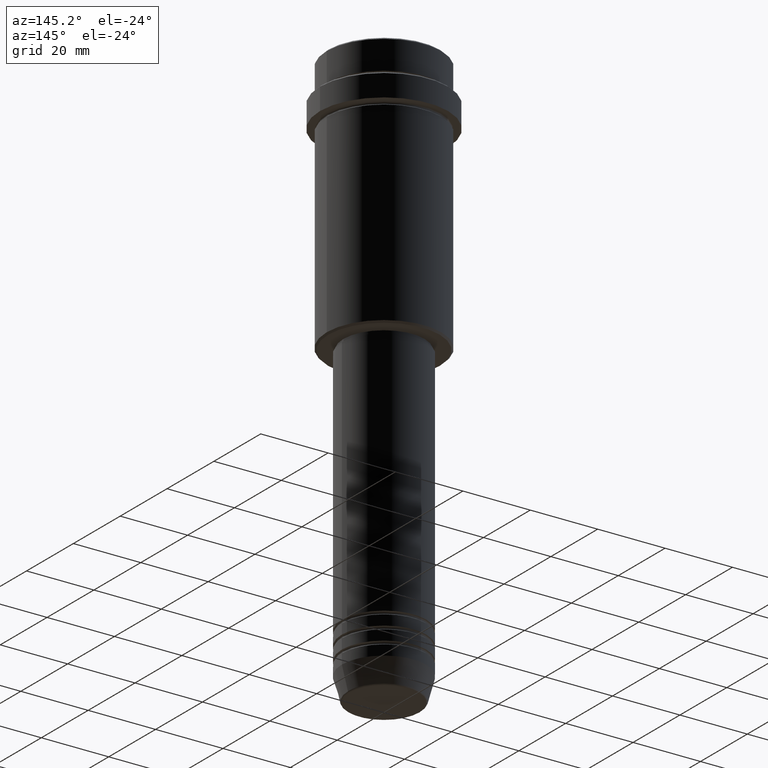
[diagram: clean part render]
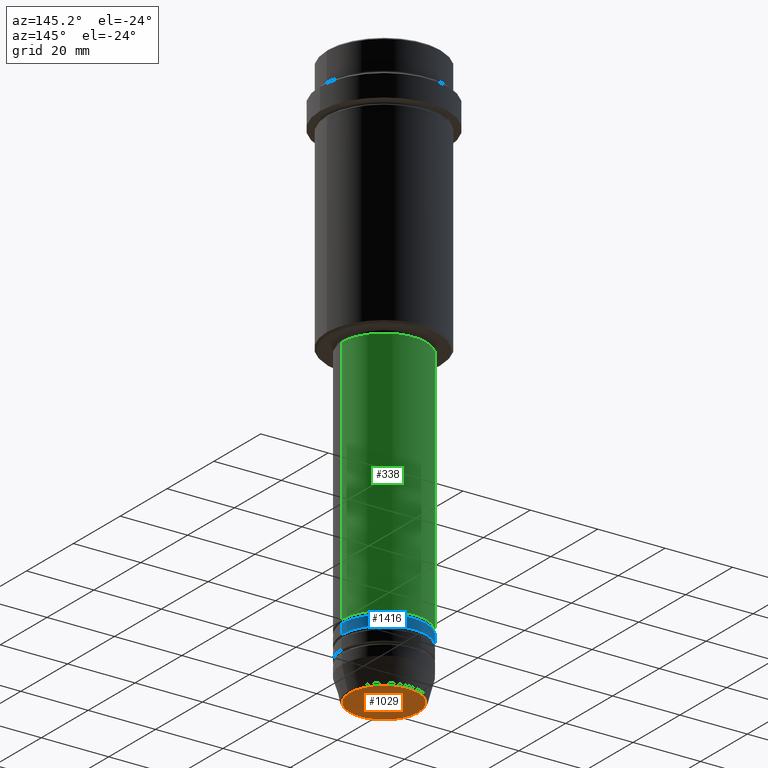
[diagram: same view with three faces highlighted in distinct colors, each labeled with its STEP entity id]
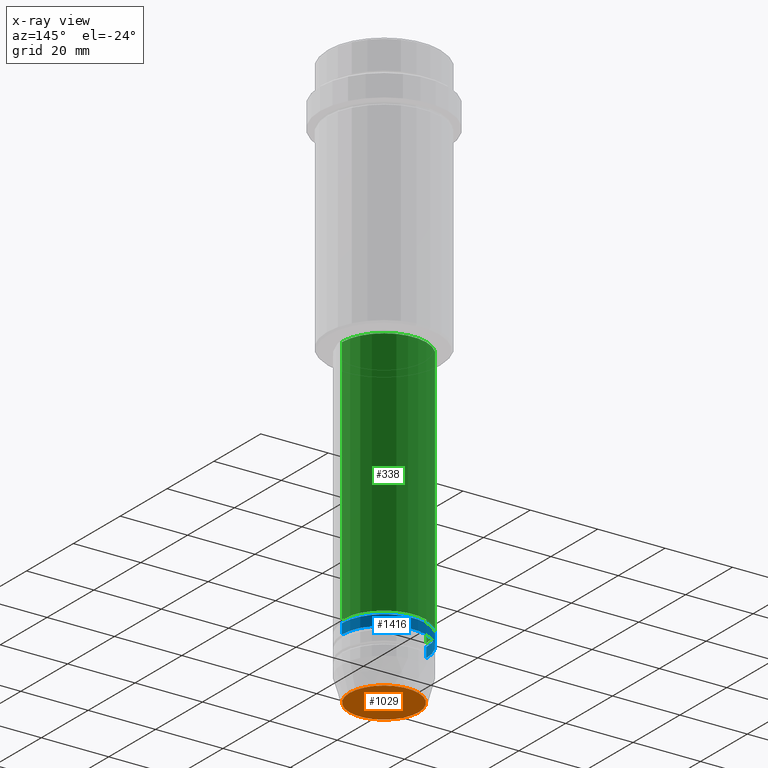
[diagram: x-ray of the same camera — body ghosted, the three highlighted faces saturated]
A machine part, auxiliary view with three faces highlighted in distinct colors.
The next image is the same camera in x-ray (body ghosted, the three faces saturated) — at least one of them is partly hidden behind the body in this view.
Their STEP definitions:

[orange] entity #1029 — the highlighted planar face has unit normal (0, -0, 1).
#21 = DIRECTION ( 'NONE',  ( 1.000000000000000000, 0.000000000000000000, 0.000000000000000000 ) ) ;
#88 = CARTESIAN_POINT ( 'NONE',  ( 0.000000000000000000, 0.000000000000000000, -170.0000000000000000 ) ) ;
#110 = EDGE_CURVE ( 'NONE', #747, #968, #164, .T. ) ;
#164 = CIRCLE ( 'NONE', #567, 10.24069215899265828 ) ;
#208 = CIRCLE ( 'NONE', #248, 10.24069215899265828 ) ;
#213 = ORIENTED_EDGE ( 'NONE', *, *, #427, .T. ) ;
#248 = AXIS2_PLACEMENT_3D ( 'NONE', #556, #1001, #21 ) ;
#255 = EDGE_LOOP ( 'NONE', ( #213, #814 ) ) ;
#271 = PLANE ( 'NONE',  #765 ) ;
#427 = EDGE_CURVE ( 'NONE', #968, #747, #208, .T. ) ;
#487 = DIRECTION ( 'NONE',  ( 1.000000000000000000, 0.000000000000000000, 0.000000000000000000 ) ) ;
#556 = CARTESIAN_POINT ( 'NONE',  ( 0.000000000000000000, 0.000000000000000000, -170.0000000000000000 ) ) ;
#567 = AXIS2_PLACEMENT_3D ( 'NONE', #812, #1044, #487 ) ;
#723 = DIRECTION ( 'NONE',  ( 1.000000000000000000, 0.000000000000000000, 0.000000000000000000 ) ) ;
#747 = VERTEX_POINT ( 'NONE', #984 ) ;
#765 = AXIS2_PLACEMENT_3D ( 'NONE', #88, #1050, #723 ) ;
#812 = CARTESIAN_POINT ( 'NONE',  ( 0.000000000000000000, 0.000000000000000000, -170.0000000000000000 ) ) ;
#814 = ORIENTED_EDGE ( 'NONE', *, *, #110, .T. ) ;
#887 = CARTESIAN_POINT ( 'NONE',  ( 10.24069215899265828, 0.000000000000000000, -170.0000000000000000 ) ) ;
#968 = VERTEX_POINT ( 'NONE', #887 ) ;
#984 = CARTESIAN_POINT ( 'NONE',  ( -10.24069215899265828, 1.283696036640842178E-15, -170.0000000000000000 ) ) ;
#1001 = DIRECTION ( 'NONE',  ( 0.000000000000000000, 0.000000000000000000, -1.000000000000000000 ) ) ;
#1029 = ADVANCED_FACE ( 'NONE', ( #1280 ), #271, .F. ) ;
#1044 = DIRECTION ( 'NONE',  ( 0.000000000000000000, 0.000000000000000000, -1.000000000000000000 ) ) ;
#1050 = DIRECTION ( 'NONE',  ( 0.000000000000000000, -0.000000000000000000, 1.000000000000000000 ) ) ;
#1280 = FACE_OUTER_BOUND ( 'NONE', #255, .T. ) ;

[blue] entity #1416 — the highlighted cylindrical surface (partial cylindrical patch) has radius 12.5 mm, axis along (-0, -0, 1).
#2 = DIRECTION ( 'NONE',  ( 1.000000000000000000, 0.000000000000000000, 0.000000000000000000 ) ) ;
#20 = EDGE_CURVE ( 'NONE', #1225, #455, #481, .T. ) ;
#48 = ORIENTED_EDGE ( 'NONE', *, *, #20, .F. ) ;
#79 = DIRECTION ( 'NONE',  ( 1.000000000000000000, 0.000000000000000000, 0.000000000000000000 ) ) ;
#92 = CARTESIAN_POINT ( 'NONE',  ( 0.000000000000000000, 0.000000000000000000, -154.9999999999998863 ) ) ;
#129 = DIRECTION ( 'NONE',  ( -0.000000000000000000, -0.000000000000000000, 1.000000000000000000 ) ) ;
#140 = EDGE_CURVE ( 'NONE', #1225, #1162, #965, .T. ) ;
#203 = DIRECTION ( 'NONE',  ( -0.000000000000000000, -0.000000000000000000, 1.000000000000000000 ) ) ;
#253 = CARTESIAN_POINT ( 'NONE',  ( 12.50000000000000000, 0.000000000000000000, -151.9999999999998863 ) ) ;
#275 = AXIS2_PLACEMENT_3D ( 'NONE', #1094, #900, #2 ) ;
#285 = ORIENTED_EDGE ( 'NONE', *, *, #140, .T. ) ;
#299 = EDGE_CURVE ( 'NONE', #1162, #772, #1000, .T. ) ;
#328 = AXIS2_PLACEMENT_3D ( 'NONE', #956, #1392, #79 ) ;
#348 = CARTESIAN_POINT ( 'NONE',  ( -12.50000000000000000, 1.530808498934191521E-15, -151.9999999999998863 ) ) ;
#386 = ORIENTED_EDGE ( 'NONE', *, *, #299, .T. ) ;
#455 = VERTEX_POINT ( 'NONE', #253 ) ;
#481 = LINE ( 'NONE', #1155, #738 ) ;
#490 = ORIENTED_EDGE ( 'NONE', *, *, #1200, .F. ) ;
#634 = DIRECTION ( 'NONE',  ( 1.000000000000000000, 0.000000000000000000, 0.000000000000000000 ) ) ;
#640 = VECTOR ( 'NONE', #129, 1000.000000000000000 ) ;
#738 = VECTOR ( 'NONE', #937, 1000.000000000000000 ) ;
#772 = VERTEX_POINT ( 'NONE', #348 ) ;
#792 = CARTESIAN_POINT ( 'NONE',  ( -12.50000000000000000, 1.530808498934191521E-15, 0.000000000000000000 ) ) ;
#848 = AXIS2_PLACEMENT_3D ( 'NONE', #92, #203, #634 ) ;
#886 = FACE_OUTER_BOUND ( 'NONE', #1298, .T. ) ;
#900 = DIRECTION ( 'NONE',  ( -0.000000000000000000, -0.000000000000000000, 1.000000000000000000 ) ) ;
#937 = DIRECTION ( 'NONE',  ( -0.000000000000000000, -0.000000000000000000, 1.000000000000000000 ) ) ;
#956 = CARTESIAN_POINT ( 'NONE',  ( 0.000000000000000000, 0.000000000000000000, -151.9999999999998863 ) ) ;
#965 = CIRCLE ( 'NONE', #848, 12.50000000000000000 ) ;
#980 = CYLINDRICAL_SURFACE ( 'NONE', #275, 12.50000000000000000 ) ;
#1000 = LINE ( 'NONE', #792, #640 ) ;
#1019 = CIRCLE ( 'NONE', #328, 12.50000000000000000 ) ;
#1069 = CARTESIAN_POINT ( 'NONE',  ( 12.50000000000000000, 0.000000000000000000, -154.9999999999998863 ) ) ;
#1094 = CARTESIAN_POINT ( 'NONE',  ( 0.000000000000000000, 0.000000000000000000, 0.000000000000000000 ) ) ;
#1155 = CARTESIAN_POINT ( 'NONE',  ( 12.50000000000000000, 0.000000000000000000, 0.000000000000000000 ) ) ;
#1162 = VERTEX_POINT ( 'NONE', #1289 ) ;
#1200 = EDGE_CURVE ( 'NONE', #455, #772, #1019, .T. ) ;
#1225 = VERTEX_POINT ( 'NONE', #1069 ) ;
#1289 = CARTESIAN_POINT ( 'NONE',  ( -12.50000000000000000, 1.530808498934191521E-15, -154.9999999999998863 ) ) ;
#1298 = EDGE_LOOP ( 'NONE', ( #285, #386, #490, #48 ) ) ;
#1392 = DIRECTION ( 'NONE',  ( -0.000000000000000000, -0.000000000000000000, 1.000000000000000000 ) ) ;
#1416 = ADVANCED_FACE ( 'NONE', ( #886 ), #980, .T. ) ;

[green] entity #338 — the highlighted cylindrical surface (partial cylindrical patch) has radius 12.5 mm, axis along (-0, -0, 1).
#6 = DIRECTION ( 'NONE',  ( 1.000000000000000000, 0.000000000000000000, 0.000000000000000000 ) ) ;
#106 = CARTESIAN_POINT ( 'NONE',  ( -12.50000000000000000, 1.530808498934191521E-15, -76.99999999999995737 ) ) ;
#125 = AXIS2_PLACEMENT_3D ( 'NONE', #262, #707, #1146 ) ;
#130 = AXIS2_PLACEMENT_3D ( 'NONE', #1195, #653, #6 ) ;
#150 = VERTEX_POINT ( 'NONE', #106 ) ;
#244 = CARTESIAN_POINT ( 'NONE',  ( -12.50000000000000000, 1.530808498934191521E-15, -150.9999999999998863 ) ) ;
#260 = ORIENTED_EDGE ( 'NONE', *, *, #744, .F. ) ;
#262 = CARTESIAN_POINT ( 'NONE',  ( 0.000000000000000000, 0.000000000000000000, 0.000000000000000000 ) ) ;
#279 = VERTEX_POINT ( 'NONE', #652 ) ;
#286 = CARTESIAN_POINT ( 'NONE',  ( 0.000000000000000000, 0.000000000000000000, -76.99999999999995737 ) ) ;
#338 = ADVANCED_FACE ( 'NONE', ( #574 ), #931, .T. ) ;
#544 = CARTESIAN_POINT ( 'NONE',  ( 12.50000000000000000, 0.000000000000000000, 0.000000000000000000 ) ) ;
#550 = CIRCLE ( 'NONE', #130, 12.50000000000000000 ) ;
#574 = FACE_OUTER_BOUND ( 'NONE', #1393, .T. ) ;
#583 = EDGE_CURVE ( 'NONE', #892, #150, #1098, .T. ) ;
#590 = VECTOR ( 'NONE', #1215, 1000.000000000000000 ) ;
#595 = CARTESIAN_POINT ( 'NONE',  ( 12.50000000000000000, 0.000000000000000000, -76.99999999999995737 ) ) ;
#614 = CIRCLE ( 'NONE', #1083, 12.50000000000000000 ) ;
#621 = ORIENTED_EDGE ( 'NONE', *, *, #795, .T. ) ;
#652 = CARTESIAN_POINT ( 'NONE',  ( 12.50000000000000000, 0.000000000000000000, -150.9999999999998863 ) ) ;
#653 = DIRECTION ( 'NONE',  ( -0.000000000000000000, -0.000000000000000000, 1.000000000000000000 ) ) ;
#707 = DIRECTION ( 'NONE',  ( -0.000000000000000000, -0.000000000000000000, 1.000000000000000000 ) ) ;
#735 = DIRECTION ( 'NONE',  ( 1.000000000000000000, 0.000000000000000000, 0.000000000000000000 ) ) ;
#744 = EDGE_CURVE ( 'NONE', #279, #1253, #1116, .T. ) ;
#795 = EDGE_CURVE ( 'NONE', #279, #892, #550, .T. ) ;
#803 = VECTOR ( 'NONE', #1095, 1000.000000000000000 ) ;
#821 = ORIENTED_EDGE ( 'NONE', *, *, #983, .F. ) ;
#892 = VERTEX_POINT ( 'NONE', #244 ) ;
#931 = CYLINDRICAL_SURFACE ( 'NONE', #125, 12.50000000000000000 ) ;
#983 = EDGE_CURVE ( 'NONE', #1253, #150, #614, .T. ) ;
#1083 = AXIS2_PLACEMENT_3D ( 'NONE', #286, #1375, #735 ) ;
#1095 = DIRECTION ( 'NONE',  ( -0.000000000000000000, -0.000000000000000000, 1.000000000000000000 ) ) ;
#1098 = LINE ( 'NONE', #1291, #590 ) ;
#1116 = LINE ( 'NONE', #544, #803 ) ;
#1146 = DIRECTION ( 'NONE',  ( 1.000000000000000000, 0.000000000000000000, 0.000000000000000000 ) ) ;
#1195 = CARTESIAN_POINT ( 'NONE',  ( 0.000000000000000000, 0.000000000000000000, -150.9999999999998863 ) ) ;
#1215 = DIRECTION ( 'NONE',  ( -0.000000000000000000, -0.000000000000000000, 1.000000000000000000 ) ) ;
#1253 = VERTEX_POINT ( 'NONE', #595 ) ;
#1291 = CARTESIAN_POINT ( 'NONE',  ( -12.50000000000000000, 1.530808498934191521E-15, 0.000000000000000000 ) ) ;
#1375 = DIRECTION ( 'NONE',  ( -0.000000000000000000, -0.000000000000000000, 1.000000000000000000 ) ) ;
#1393 = EDGE_LOOP ( 'NONE', ( #621, #1406, #821, #260 ) ) ;
#1406 = ORIENTED_EDGE ( 'NONE', *, *, #583, .T. ) ;